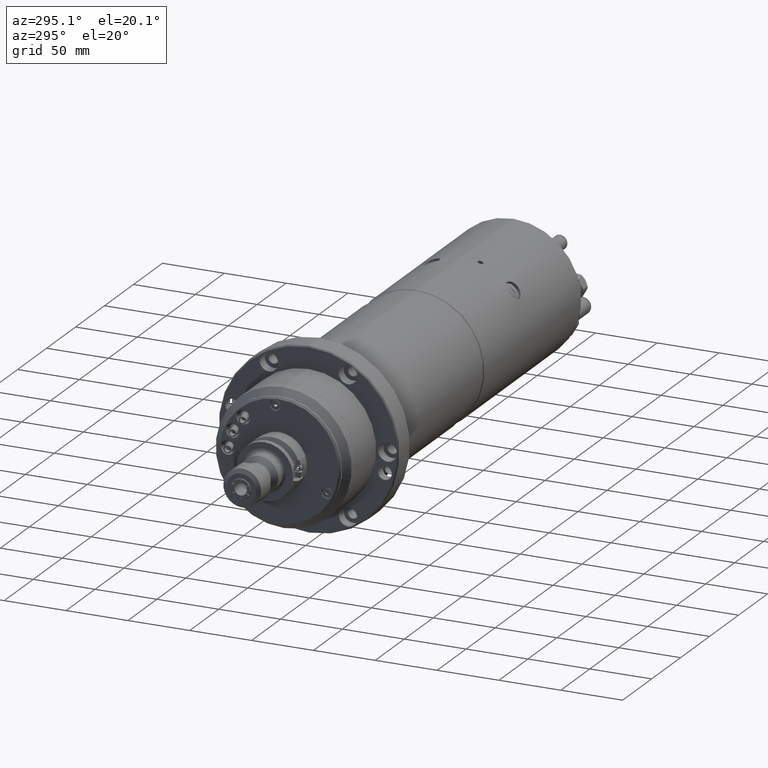
[diagram: clean part render]
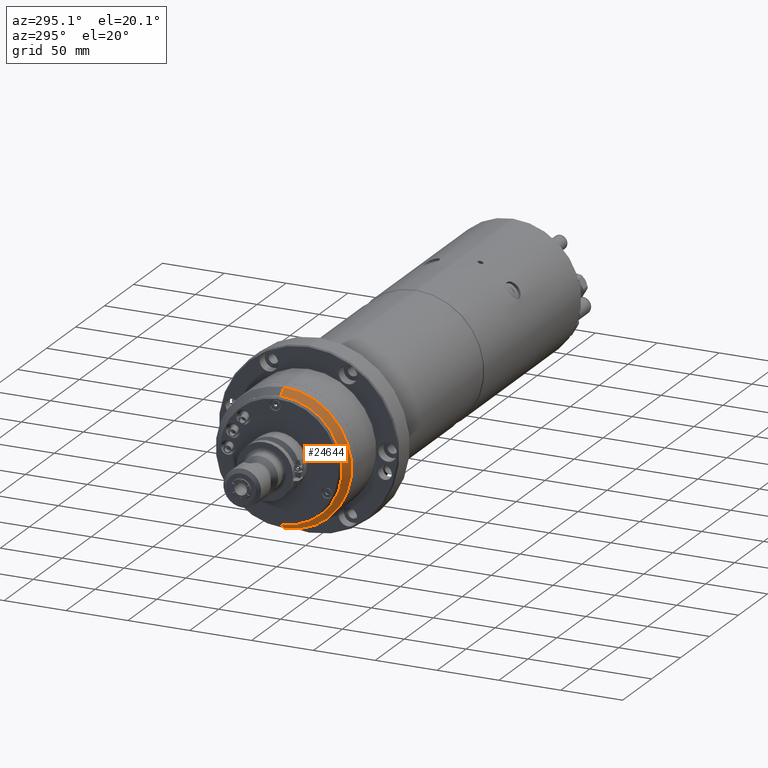
[diagram: same view with one face highlighted and labeled with its STEP entity id]
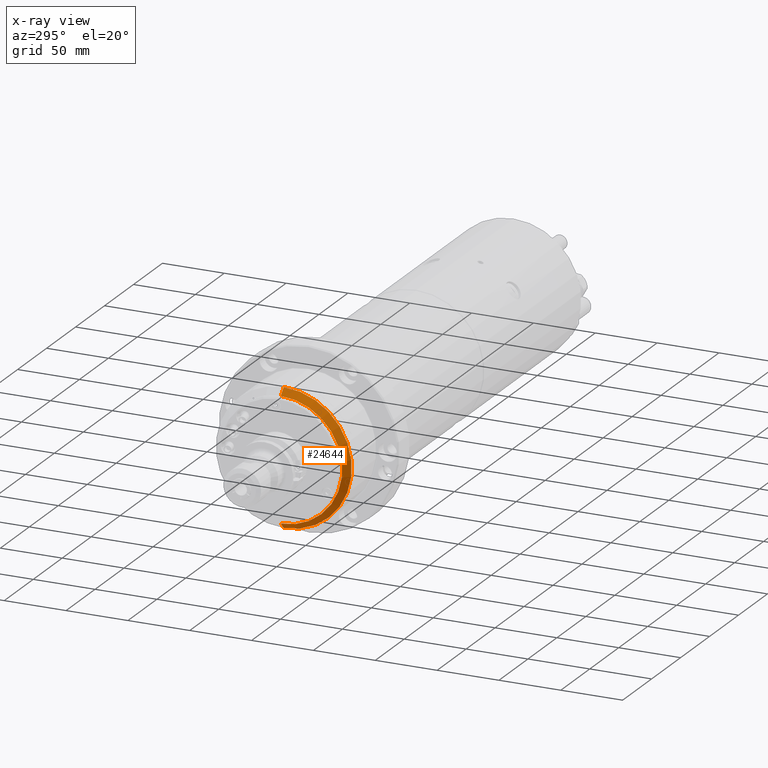
[diagram: x-ray of the same camera — body ghosted, the highlighted face saturated]
A machine part, auxiliary view. The second image highlights one B-rep face of the part: STEP entity #24644.
The next image is the same camera in x-ray: the body ghosted, the highlighted face saturated — about 0% of this face is hidden behind the body in this view.
In plain terms, the highlighted conical surface has half-angle 45 deg.
Its self-contained STEP definition (entity closure, byte-faithful):
#3636 = EDGE_CURVE ( 'NONE', #8670, #8656, #10266, .T. ) ;
#4423 = EDGE_CURVE ( 'NONE', #8693, #8656, #6807, .T. ) ;
#4898 = EDGE_LOOP ( 'NONE', ( #25423, #25312, #25541, #25523 ) ) ;
#6807 = LINE ( 'NONE', #17213, #6858 ) ;
#6858 = VECTOR ( 'NONE', #17467, 999.9999999999998900 ) ;
#7794 = AXIS2_PLACEMENT_3D ( 'NONE', #20164, #20176, #20179 ) ;
#8656 = VERTEX_POINT ( 'NONE', #27997 ) ;
#8670 = VERTEX_POINT ( 'NONE', #27861 ) ;
#8693 = VERTEX_POINT ( 'NONE', #12375 ) ;
#8815 = VERTEX_POINT ( 'NONE', #12373 ) ;
#10266 = CIRCLE ( 'NONE', #15539, 54.95000000000000300 ) ;
#12373 = CARTESIAN_POINT ( 'NONE',  ( 7.000000000000002700, 0.0000000000000000000, -49.75000000000000000 ) ) ;
#12375 = CARTESIAN_POINT ( 'NONE',  ( 7.000000000000002700, 6.411025993536394300E-015, 49.75000000000000000 ) ) ;
#15539 = AXIS2_PLACEMENT_3D ( 'NONE', #26107, #26109, #26112 ) ;
#17213 = CARTESIAN_POINT ( 'NONE',  ( 12.20000000000002400, 6.729434161314706300E-015, 54.95000000000000300 ) ) ;
#17467 = DIRECTION ( 'NONE',  ( 0.7071067811865487900, 8.659560562354919300E-017, 0.7071067811865463500 ) ) ;
#18080 = VECTOR ( 'NONE', #22090, 999.9999999999998900 ) ;
#18108 = LINE ( 'NONE', #22099, #18080 ) ;
#18295 = CIRCLE ( 'NONE', #18634, 49.75000000000000000 ) ;
#18634 = AXIS2_PLACEMENT_3D ( 'NONE', #22637, #22643, #22654 ) ;
#20164 = CARTESIAN_POINT ( 'NONE',  ( 12.20000000000002400, 0.0000000000000000000, 0.0000000000000000000 ) ) ;
#20176 = DIRECTION ( 'NONE',  ( 1.000000000000000000, 0.0000000000000000000, 0.0000000000000000000 ) ) ;
#20179 = DIRECTION ( 'NONE',  ( 0.0000000000000000000, 0.0000000000000000000, -1.000000000000000000 ) ) ;
#20675 = CONICAL_SURFACE ( 'NONE', #7794, 54.95000000000000300, 0.7853981633974466100 ) ;
#21081 = FACE_OUTER_BOUND ( 'NONE', #4898, .T. ) ;
#22090 = DIRECTION ( 'NONE',  ( 0.7071067811865487900, 0.0000000000000000000, -0.7071067811865463500 ) ) ;
#22099 = CARTESIAN_POINT ( 'NONE',  ( 12.20000000000002400, 0.0000000000000000000, -54.95000000000000300 ) ) ;
#22637 = CARTESIAN_POINT ( 'NONE',  ( 7.000000000000002700, 0.0000000000000000000, 0.0000000000000000000 ) ) ;
#22643 = DIRECTION ( 'NONE',  ( -1.000000000000000000, -0.0000000000000000000, -0.0000000000000000000 ) ) ;
#22654 = DIRECTION ( 'NONE',  ( 0.0000000000000000000, 0.0000000000000000000, 1.000000000000000000 ) ) ;
#24644 = ADVANCED_FACE ( 'NONE', ( #21081 ), #20675, .T. ) ;
#25312 = ORIENTED_EDGE ( 'NONE', *, *, #28687, .F. ) ;
#25423 = ORIENTED_EDGE ( 'NONE', *, *, #4423, .F. ) ;
#25523 = ORIENTED_EDGE ( 'NONE', *, *, #3636, .T. ) ;
#25541 = ORIENTED_EDGE ( 'NONE', *, *, #28962, .T. ) ;
#26107 = CARTESIAN_POINT ( 'NONE',  ( 12.20000000000002400, 0.0000000000000000000, 0.0000000000000000000 ) ) ;
#26109 = DIRECTION ( 'NONE',  ( -1.000000000000000000, -0.0000000000000000000, -0.0000000000000000000 ) ) ;
#26112 = DIRECTION ( 'NONE',  ( 0.0000000000000000000, 0.0000000000000000000, 1.000000000000000000 ) ) ;
#27861 = CARTESIAN_POINT ( 'NONE',  ( 12.20000000000002400, 0.0000000000000000000, -54.95000000000000300 ) ) ;
#27997 = CARTESIAN_POINT ( 'NONE',  ( 12.20000000000002400, 6.729434161314706300E-015, 54.95000000000000300 ) ) ;
#28687 = EDGE_CURVE ( 'NONE', #8815, #8693, #18295, .T. ) ;
#28962 = EDGE_CURVE ( 'NONE', #8815, #8670, #18108, .T. ) ;